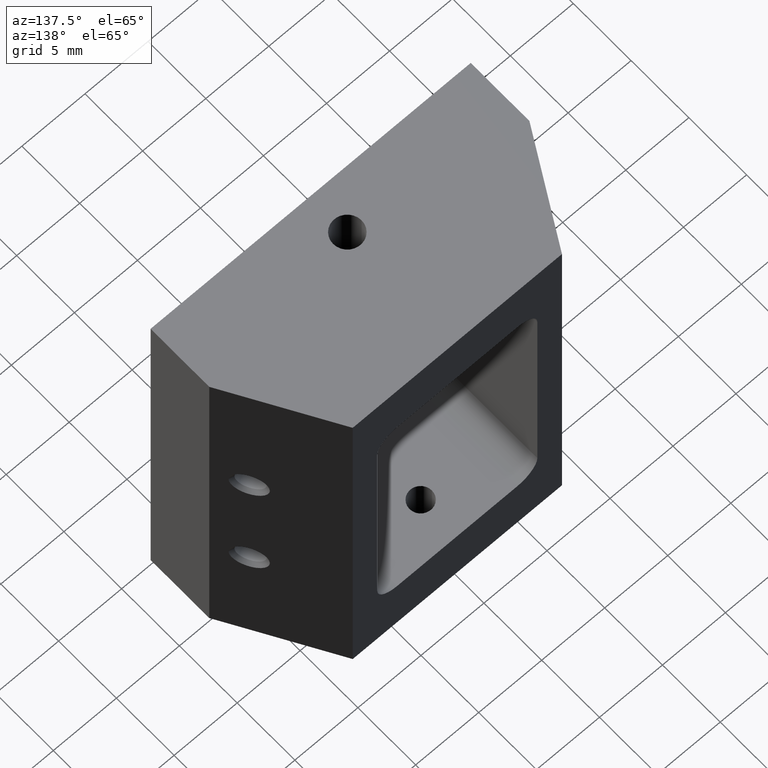
[diagram: clean part render]
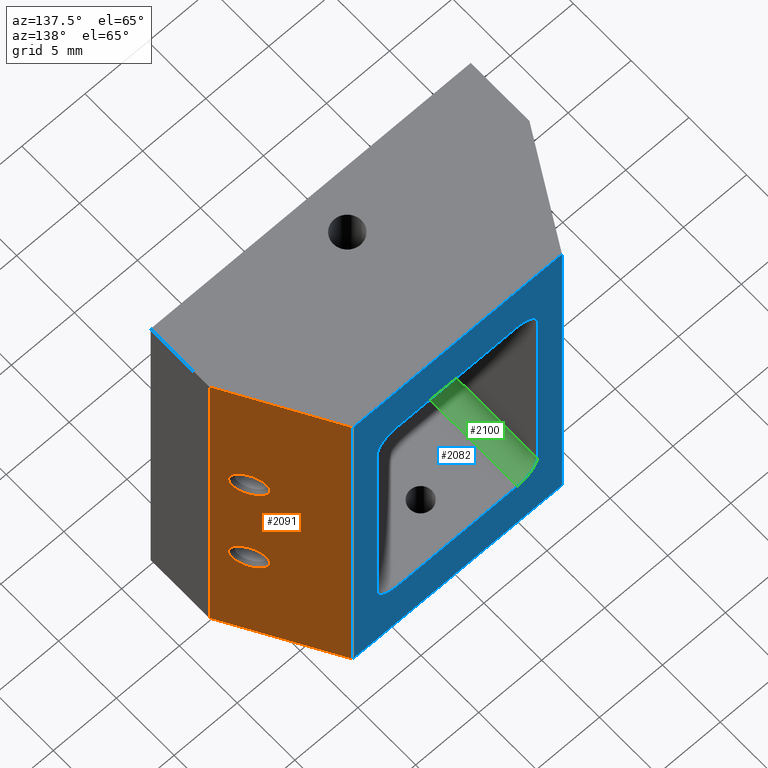
[diagram: same view with three faces highlighted in distinct colors, each labeled with its STEP entity id]
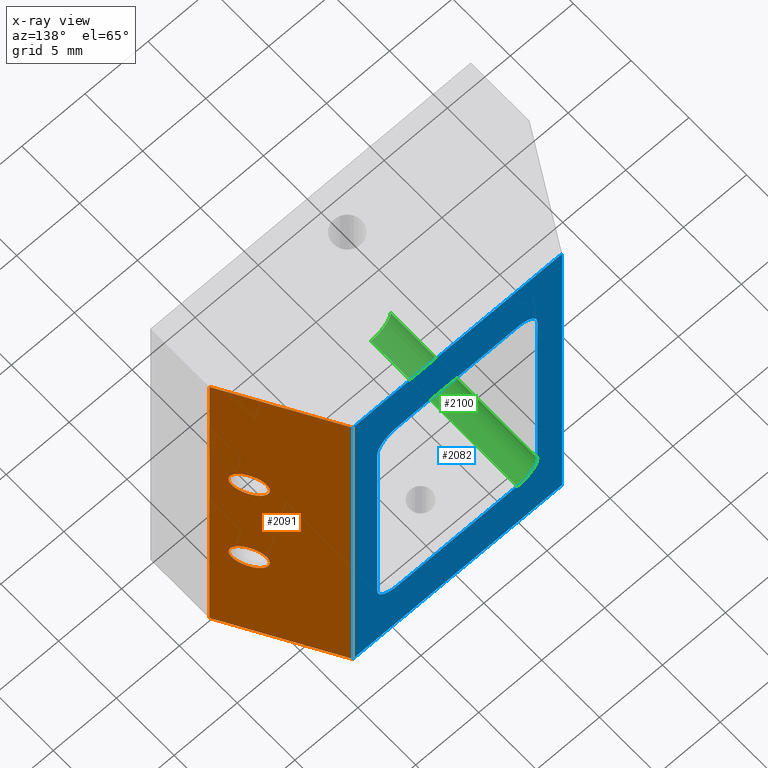
[diagram: x-ray of the same camera — body ghosted, the three highlighted faces saturated]
A machine part, auxiliary view with three faces highlighted in distinct colors.
The next image is the same camera in x-ray (body ghosted, the three faces saturated) — at least one of them is partly hidden behind the body in this view.
Their STEP definitions:

[orange] entity #2091 — the highlighted planar face has unit normal (-0.866, -0.5, 0).
#6 = EDGE_LOOP ( 'NONE', ( #1238, #1302 ) ) ;
#11 = EDGE_LOOP ( 'NONE', ( #1278, #1335 ) ) ;
#18 = EDGE_LOOP ( 'NONE', ( #1263, #1273, #1275, #1293 ) ) ;
#82 = LINE ( 'NONE', #278, #111 ) ;
#86 = LINE ( 'NONE', #280, #95 ) ;
#90 = LINE ( 'NONE', #272, #92 ) ;
#92 = VECTOR ( 'NONE', #261, 39.37007874015748900 ) ;
#95 = VECTOR ( 'NONE', #281, 39.37007874015748100 ) ;
#96 = CIRCLE ( 'NONE', #1210, 0.05000000000000002400 ) ;
#97 = VECTOR ( 'NONE', #277, 39.37007874015748100 ) ;
#104 = CIRCLE ( 'NONE', #1206, 0.05000000000000002400 ) ;
#111 = VECTOR ( 'NONE', #279, 39.37007874015748900 ) ;
#112 = LINE ( 'NONE', #271, #97 ) ;
#261 = DIRECTION ( 'NONE',  ( -0.5000000000000012200, 0.8660254037844379300, -0.0000000000000000000 ) ) ;
#271 = CARTESIAN_POINT ( 'NONE',  ( 0.3267949192431118300, 0.4999999999999998300, 1.259842519685039400 ) ) ;
#272 = CARTESIAN_POINT ( 'NONE',  ( 0.3267949192431118300, 0.4999999999999998300, 0.0000000000000000000 ) ) ;
#277 = DIRECTION ( 'NONE',  ( -0.0000000000000000000, -0.0000000000000000000, -1.000000000000000000 ) ) ;
#278 = CARTESIAN_POINT ( 'NONE',  ( 0.3267949192431118300, 0.4999999999999998300, 1.259842519685039400 ) ) ;
#279 = DIRECTION ( 'NONE',  ( -0.5000000000000012200, 0.8660254037844379300, -0.0000000000000000000 ) ) ;
#280 = CARTESIAN_POINT ( 'NONE',  ( 0.5000000000000001100, 0.1999999999999999800, 1.259842519685039400 ) ) ;
#281 = DIRECTION ( 'NONE',  ( -0.0000000000000000000, -0.0000000000000000000, -1.000000000000000000 ) ) ;
#283 = CARTESIAN_POINT ( 'NONE',  ( 0.4517949192431124900, 0.2834936490538905700, 0.7874015748031495400 ) ) ;
#284 = DIRECTION ( 'NONE',  ( 0.8660254037844388200, 0.4999999999999996700, -0.0000000000000000000 ) ) ;
#285 = DIRECTION ( 'NONE',  ( -0.4999999999999998900, 0.8660254037844388200, 0.0000000000000000000 ) ) ;
#304 = CARTESIAN_POINT ( 'NONE',  ( 0.4517949192431124900, 0.2834936490538905700, 0.3937007874015746600 ) ) ;
#305 = DIRECTION ( 'NONE',  ( 0.8660254037844388200, 0.4999999999999996700, -0.0000000000000000000 ) ) ;
#306 = DIRECTION ( 'NONE',  ( -0.4999999999999998900, 0.8660254037844388200, 0.0000000000000000000 ) ) ;
#478 = CARTESIAN_POINT ( 'NONE',  ( 0.4517949192431124900, 0.2834936490538905700, 0.7874015748031495400 ) ) ;
#479 = DIRECTION ( 'NONE',  ( 0.8660254037844388200, 0.4999999999999996700, -0.0000000000000000000 ) ) ;
#480 = DIRECTION ( 'NONE',  ( -0.4999999999999998900, 0.8660254037844388200, 0.0000000000000000000 ) ) ;
#830 = CARTESIAN_POINT ( 'NONE',  ( 0.4517949192431124900, 0.2834936490538905700, 0.3937007874015746600 ) ) ;
#831 = DIRECTION ( 'NONE',  ( 0.8660254037844388200, 0.4999999999999996700, -0.0000000000000000000 ) ) ;
#832 = DIRECTION ( 'NONE',  ( -0.4999999999999998900, 0.8660254037844388200, 0.0000000000000000000 ) ) ;
#833 = CARTESIAN_POINT ( 'NONE',  ( 0.3267949192431118300, 0.4999999999999998300, 0.0000000000000000000 ) ) ;
#834 = CARTESIAN_POINT ( 'NONE',  ( 0.3267949192431118300, 0.4999999999999998300, 1.259842519685039400 ) ) ;
#877 = CARTESIAN_POINT ( 'NONE',  ( 0.4267949192431125200, 0.3267949192431125500, 0.7874015748031495400 ) ) ;
#881 = CARTESIAN_POINT ( 'NONE',  ( 0.4767949192431125100, 0.2401923788646686300, 0.3937007874015746600 ) ) ;
#891 = CARTESIAN_POINT ( 'NONE',  ( 0.4767949192431125100, 0.2401923788646686300, 0.7874015748031495400 ) ) ;
#906 = CARTESIAN_POINT ( 'NONE',  ( 0.4267949192431125200, 0.3267949192431125500, 0.3937007874015746600 ) ) ;
#916 = CARTESIAN_POINT ( 'NONE',  ( 0.5000000000000001100, 0.1999999999999999800, 1.259842519685039400 ) ) ;
#931 = CARTESIAN_POINT ( 'NONE',  ( 0.5000000000000001100, 0.1999999999999999800, 0.0000000000000000000 ) ) ;
#998 = DIRECTION ( 'NONE',  ( -0.8660254037844379300, -0.5000000000000012200, 0.0000000000000000000 ) ) ;
#1005 = CARTESIAN_POINT ( 'NONE',  ( 0.3267949192431118300, 0.4999999999999998300, 1.259842519685039400 ) ) ;
#1007 = PLANE ( 'NONE',  #1980 ) ;
#1009 = DIRECTION ( 'NONE',  ( 0.5000000000000012200, -0.8660254037844379300, 0.0000000000000000000 ) ) ;
#1038 = EDGE_CURVE ( 'NONE', #1506, #1348, #90, .T. ) ;
#1039 = EDGE_CURVE ( 'NONE', #1346, #1348, #112, .T. ) ;
#1040 = EDGE_CURVE ( 'NONE', #1487, #1346, #82, .T. ) ;
#1041 = EDGE_CURVE ( 'NONE', #1487, #1506, #86, .T. ) ;
#1042 = EDGE_CURVE ( 'NONE', #1447, #1455, #104, .T. ) ;
#1050 = EDGE_CURVE ( 'NONE', #1470, #1444, #96, .T. ) ;
#1099 = EDGE_CURVE ( 'NONE', #1455, #1447, #1674, .T. ) ;
#1196 = EDGE_CURVE ( 'NONE', #1444, #1470, #1768, .T. ) ;
#1206 = AXIS2_PLACEMENT_3D ( 'NONE', #283, #284, #285 ) ;
#1210 = AXIS2_PLACEMENT_3D ( 'NONE', #304, #305, #306 ) ;
#1229 = AXIS2_PLACEMENT_3D ( 'NONE', #478, #479, #480 ) ;
#1238 = ORIENTED_EDGE ( 'NONE', *, *, #1050, .F. ) ;
#1263 = ORIENTED_EDGE ( 'NONE', *, *, #1038, .T. ) ;
#1273 = ORIENTED_EDGE ( 'NONE', *, *, #1039, .F. ) ;
#1275 = ORIENTED_EDGE ( 'NONE', *, *, #1040, .F. ) ;
#1278 = ORIENTED_EDGE ( 'NONE', *, *, #1042, .F. ) ;
#1293 = ORIENTED_EDGE ( 'NONE', *, *, #1041, .T. ) ;
#1302 = ORIENTED_EDGE ( 'NONE', *, *, #1196, .F. ) ;
#1335 = ORIENTED_EDGE ( 'NONE', *, *, #1099, .F. ) ;
#1346 = VERTEX_POINT ( 'NONE', #834 ) ;
#1348 = VERTEX_POINT ( 'NONE', #833 ) ;
#1444 = VERTEX_POINT ( 'NONE', #881 ) ;
#1447 = VERTEX_POINT ( 'NONE', #877 ) ;
#1455 = VERTEX_POINT ( 'NONE', #891 ) ;
#1470 = VERTEX_POINT ( 'NONE', #906 ) ;
#1487 = VERTEX_POINT ( 'NONE', #916 ) ;
#1506 = VERTEX_POINT ( 'NONE', #931 ) ;
#1674 = CIRCLE ( 'NONE', #1229, 0.05000000000000002400 ) ;
#1768 = CIRCLE ( 'NONE', #1959, 0.05000000000000002400 ) ;
#1832 = FACE_OUTER_BOUND ( 'NONE', #18, .T. ) ;
#1833 = FACE_BOUND ( 'NONE', #6, .T. ) ;
#1836 = FACE_BOUND ( 'NONE', #11, .T. ) ;
#1959 = AXIS2_PLACEMENT_3D ( 'NONE', #830, #831, #832 ) ;
#1980 = AXIS2_PLACEMENT_3D ( 'NONE', #1005, #998, #1009 ) ;
#2091 = ADVANCED_FACE ( 'NONE', ( #1832, #1836, #1833 ), #1007, .F. ) ;

[blue] entity #2082 — the highlighted planar face has unit normal (0, -1, 0).
#7 = EDGE_LOOP ( 'NONE', ( #1319, #1332, #1334, #1333, #1320, #1321, #1330, #1328 ) ) ;
#19 = EDGE_LOOP ( 'NONE', ( #1327, #1326, #1325, #1324 ) ) ;
#94 = VECTOR ( 'NONE', #276, 39.37007874015748100 ) ;
#97 = VECTOR ( 'NONE', #277, 39.37007874015748100 ) ;
#99 = LINE ( 'NONE', #303, #101 ) ;
#100 = LINE ( 'NONE', #290, #94 ) ;
#101 = VECTOR ( 'NONE', #299, 39.37007874015748100 ) ;
#102 = CIRCLE ( 'NONE', #1211, 0.06249999999999995100 ) ;
#109 = LINE ( 'NONE', #313, #110 ) ;
#110 = VECTOR ( 'NONE', #315, 39.37007874015748100 ) ;
#112 = LINE ( 'NONE', #271, #97 ) ;
#116 = CIRCLE ( 'NONE', #1213, 0.06250000000000001400 ) ;
#118 = VECTOR ( 'NONE', #308, 39.37007874015748100 ) ;
#120 = VECTOR ( 'NONE', #319, 39.37007874015748100 ) ;
#126 = LINE ( 'NONE', #314, #118 ) ;
#130 = LINE ( 'NONE', #323, #120 ) ;
#132 = CIRCLE ( 'NONE', #1212, 0.06249999999999995100 ) ;
#254 = CARTESIAN_POINT ( 'NONE',  ( -0.3267949192431118300, 0.4999999999999998300, 0.0000000000000000000 ) ) ;
#257 = DIRECTION ( 'NONE',  ( -1.000000000000000000, -0.0000000000000000000, -0.0000000000000000000 ) ) ;
#258 = CARTESIAN_POINT ( 'NONE',  ( -0.3267949192431118300, 0.4999999999999998300, 1.259842519685039400 ) ) ;
#260 = DIRECTION ( 'NONE',  ( -1.000000000000000000, -0.0000000000000000000, -0.0000000000000000000 ) ) ;
#262 = CARTESIAN_POINT ( 'NONE',  ( 0.1874999999999999700, 0.4999999999999998300, 0.2593503937007873800 ) ) ;
#263 = DIRECTION ( 'NONE',  ( 0.0000000000000000000, -1.000000000000000000, 0.0000000000000000000 ) ) ;
#264 = DIRECTION ( 'NONE',  ( 0.0000000000000000000, 0.0000000000000000000, -1.000000000000000000 ) ) ;
#271 = CARTESIAN_POINT ( 'NONE',  ( 0.3267949192431118300, 0.4999999999999998300, 1.259842519685039400 ) ) ;
#276 = DIRECTION ( 'NONE',  ( -0.0000000000000000000, -0.0000000000000000000, -1.000000000000000000 ) ) ;
#277 = DIRECTION ( 'NONE',  ( -0.0000000000000000000, -0.0000000000000000000, -1.000000000000000000 ) ) ;
#290 = CARTESIAN_POINT ( 'NONE',  ( -0.3267949192431118300, 0.4999999999999998300, 1.259842519685039400 ) ) ;
#299 = DIRECTION ( 'NONE',  ( -2.365532012695646200E-016, -0.0000000000000000000, -1.000000000000000000 ) ) ;
#303 = CARTESIAN_POINT ( 'NONE',  ( 0.2500000000000000000, 0.4999999999999998300, 0.1968503937007874100 ) ) ;
#308 = DIRECTION ( 'NONE',  ( -0.0000000000000000000, -0.0000000000000000000, 1.000000000000000000 ) ) ;
#310 = CARTESIAN_POINT ( 'NONE',  ( 0.1875000000000001900, 0.4999999999999998300, 1.000492125984252100 ) ) ;
#311 = DIRECTION ( 'NONE',  ( 0.0000000000000000000, -1.000000000000000000, 0.0000000000000000000 ) ) ;
#312 = DIRECTION ( 'NONE',  ( 0.0000000000000000000, 0.0000000000000000000, -1.000000000000000000 ) ) ;
#313 = CARTESIAN_POINT ( 'NONE',  ( 0.2500000000000002200, 0.4999999999999998300, 1.062992125984252100 ) ) ;
#314 = CARTESIAN_POINT ( 'NONE',  ( -0.2500000000000000000, 0.4999999999999998300, 1.062992125984252100 ) ) ;
#315 = DIRECTION ( 'NONE',  ( 1.000000000000000000, -0.0000000000000000000, -0.0000000000000000000 ) ) ;
#319 = DIRECTION ( 'NONE',  ( -1.000000000000000000, -0.0000000000000000000, -0.0000000000000000000 ) ) ;
#320 = CARTESIAN_POINT ( 'NONE',  ( -0.1874999999999999700, 0.4999999999999998300, 1.000492125984252100 ) ) ;
#321 = DIRECTION ( 'NONE',  ( 0.0000000000000000000, -1.000000000000000000, 0.0000000000000000000 ) ) ;
#322 = DIRECTION ( 'NONE',  ( 0.0000000000000000000, 0.0000000000000000000, -1.000000000000000000 ) ) ;
#323 = CARTESIAN_POINT ( 'NONE',  ( -0.2500000000000000000, 0.4999999999999998300, 0.1968503937007874100 ) ) ;
#326 = CARTESIAN_POINT ( 'NONE',  ( -0.1874999999999999700, 0.4999999999999998300, 0.2593503937007873800 ) ) ;
#327 = DIRECTION ( 'NONE',  ( 0.0000000000000000000, -1.000000000000000000, 0.0000000000000000000 ) ) ;
#328 = DIRECTION ( 'NONE',  ( 0.0000000000000000000, 0.0000000000000000000, -1.000000000000000000 ) ) ;
#833 = CARTESIAN_POINT ( 'NONE',  ( 0.3267949192431118300, 0.4999999999999998300, 0.0000000000000000000 ) ) ;
#834 = CARTESIAN_POINT ( 'NONE',  ( 0.3267949192431118300, 0.4999999999999998300, 1.259842519685039400 ) ) ;
#847 = CARTESIAN_POINT ( 'NONE',  ( 0.2500000000000002200, 0.4999999999999998300, 1.000492125984252100 ) ) ;
#912 = CARTESIAN_POINT ( 'NONE',  ( -0.3267949192431118300, 0.4999999999999998300, 1.259842519685039400 ) ) ;
#913 = CARTESIAN_POINT ( 'NONE',  ( -0.1874999999999999700, 0.4999999999999998300, 1.062992125984252100 ) ) ;
#917 = CARTESIAN_POINT ( 'NONE',  ( -0.1874999999999999700, 0.4999999999999998300, 0.1968503937007874100 ) ) ;
#927 = CARTESIAN_POINT ( 'NONE',  ( -0.2500000000000000000, 0.4999999999999998300, 0.2593503937007873800 ) ) ;
#932 = CARTESIAN_POINT ( 'NONE',  ( 0.1874999999999999700, 0.4999999999999998300, 0.1968503937007874100 ) ) ;
#933 = CARTESIAN_POINT ( 'NONE',  ( 0.1875000000000001900, 0.4999999999999998300, 1.062992125984252100 ) ) ;
#934 = CARTESIAN_POINT ( 'NONE',  ( -0.2500000000000000000, 0.4999999999999998300, 1.000492125984252100 ) ) ;
#937 = CARTESIAN_POINT ( 'NONE',  ( 0.2500000000000000000, 0.4999999999999998300, 0.2593503937007873800 ) ) ;
#940 = CARTESIAN_POINT ( 'NONE',  ( -0.3267949192431118300, 0.4999999999999998300, 0.0000000000000000000 ) ) ;
#973 = CARTESIAN_POINT ( 'NONE',  ( -0.3267949192431118300, 0.4999999999999998300, 1.259842519685039400 ) ) ;
#976 = PLANE ( 'NONE',  #1972 ) ;
#978 = DIRECTION ( 'NONE',  ( 0.0000000000000000000, -1.000000000000000000, 0.0000000000000000000 ) ) ;
#979 = DIRECTION ( 'NONE',  ( 0.0000000000000000000, -0.0000000000000000000, -1.000000000000000000 ) ) ;
#1032 = EDGE_CURVE ( 'NONE', #1348, #1515, #1662, .T. ) ;
#1033 = EDGE_CURVE ( 'NONE', #1346, #1494, #1659, .T. ) ;
#1034 = EDGE_CURVE ( 'NONE', #1507, #1512, #1661, .T. ) ;
#1039 = EDGE_CURVE ( 'NONE', #1346, #1348, #112, .T. ) ;
#1045 = EDGE_CURVE ( 'NONE', #1494, #1515, #100, .T. ) ;
#1051 = EDGE_CURVE ( 'NONE', #1347, #1512, #99, .T. ) ;
#1052 = EDGE_CURVE ( 'NONE', #1347, #1508, #102, .T. ) ;
#1054 = EDGE_CURVE ( 'NONE', #1483, #1508, #109, .T. ) ;
#1057 = EDGE_CURVE ( 'NONE', #1483, #1509, #132, .T. ) ;
#1058 = EDGE_CURVE ( 'NONE', #1501, #1509, #126, .T. ) ;
#1059 = EDGE_CURVE ( 'NONE', #1501, #1485, #116, .T. ) ;
#1060 = EDGE_CURVE ( 'NONE', #1507, #1485, #130, .T. ) ;
#1202 = AXIS2_PLACEMENT_3D ( 'NONE', #262, #263, #264 ) ;
#1211 = AXIS2_PLACEMENT_3D ( 'NONE', #310, #311, #312 ) ;
#1212 = AXIS2_PLACEMENT_3D ( 'NONE', #320, #321, #322 ) ;
#1213 = AXIS2_PLACEMENT_3D ( 'NONE', #326, #327, #328 ) ;
#1319 = ORIENTED_EDGE ( 'NONE', *, *, #1051, .F. ) ;
#1320 = ORIENTED_EDGE ( 'NONE', *, *, #1058, .F. ) ;
#1321 = ORIENTED_EDGE ( 'NONE', *, *, #1059, .T. ) ;
#1324 = ORIENTED_EDGE ( 'NONE', *, *, #1039, .T. ) ;
#1325 = ORIENTED_EDGE ( 'NONE', *, *, #1033, .F. ) ;
#1326 = ORIENTED_EDGE ( 'NONE', *, *, #1045, .F. ) ;
#1327 = ORIENTED_EDGE ( 'NONE', *, *, #1032, .T. ) ;
#1328 = ORIENTED_EDGE ( 'NONE', *, *, #1034, .T. ) ;
#1330 = ORIENTED_EDGE ( 'NONE', *, *, #1060, .F. ) ;
#1332 = ORIENTED_EDGE ( 'NONE', *, *, #1052, .T. ) ;
#1333 = ORIENTED_EDGE ( 'NONE', *, *, #1057, .T. ) ;
#1334 = ORIENTED_EDGE ( 'NONE', *, *, #1054, .F. ) ;
#1346 = VERTEX_POINT ( 'NONE', #834 ) ;
#1347 = VERTEX_POINT ( 'NONE', #847 ) ;
#1348 = VERTEX_POINT ( 'NONE', #833 ) ;
#1483 = VERTEX_POINT ( 'NONE', #913 ) ;
#1485 = VERTEX_POINT ( 'NONE', #917 ) ;
#1494 = VERTEX_POINT ( 'NONE', #912 ) ;
#1501 = VERTEX_POINT ( 'NONE', #927 ) ;
#1507 = VERTEX_POINT ( 'NONE', #932 ) ;
#1508 = VERTEX_POINT ( 'NONE', #933 ) ;
#1509 = VERTEX_POINT ( 'NONE', #934 ) ;
#1512 = VERTEX_POINT ( 'NONE', #937 ) ;
#1515 = VERTEX_POINT ( 'NONE', #940 ) ;
#1659 = LINE ( 'NONE', #258, #1665 ) ;
#1661 = CIRCLE ( 'NONE', #1202, 0.06250000000000001400 ) ;
#1662 = LINE ( 'NONE', #254, #1663 ) ;
#1663 = VECTOR ( 'NONE', #257, 39.37007874015748100 ) ;
#1665 = VECTOR ( 'NONE', #260, 39.37007874015748100 ) ;
#1805 = FACE_BOUND ( 'NONE', #7, .T. ) ;
#1813 = FACE_OUTER_BOUND ( 'NONE', #19, .T. ) ;
#1972 = AXIS2_PLACEMENT_3D ( 'NONE', #973, #978, #979 ) ;
#2082 = ADVANCED_FACE ( 'NONE', ( #1805, #1813 ), #976, .F. ) ;

[green] entity #2100 — the highlighted cylindrical surface (edge-blend (fillet) strip) has radius 1.5875 mm, axis along (0, -1, 0).
#36 = EDGE_LOOP ( 'NONE', ( #1526, #1533, #1519, #1525 ) ) ;
#116 = CIRCLE ( 'NONE', #1213, 0.06250000000000001400 ) ;
#124 = LINE ( 'NONE', #336, #125 ) ;
#125 = VECTOR ( 'NONE', #340, 39.37007874015748100 ) ;
#183 = CARTESIAN_POINT ( 'NONE',  ( -0.1874999999999999700, -1.365923996832131600E-016, 0.2593503937007873800 ) ) ;
#184 = DIRECTION ( 'NONE',  ( 0.0000000000000000000, -1.000000000000000000, 0.0000000000000000000 ) ) ;
#186 = DIRECTION ( 'NONE',  ( 0.0000000000000000000, 0.0000000000000000000, -1.000000000000000000 ) ) ;
#326 = CARTESIAN_POINT ( 'NONE',  ( -0.1874999999999999700, 0.4999999999999998300, 0.2593503937007873800 ) ) ;
#327 = DIRECTION ( 'NONE',  ( 0.0000000000000000000, -1.000000000000000000, 0.0000000000000000000 ) ) ;
#328 = DIRECTION ( 'NONE',  ( 0.0000000000000000000, 0.0000000000000000000, -1.000000000000000000 ) ) ;
#336 = CARTESIAN_POINT ( 'NONE',  ( -0.2500000000000000000, 0.4999999999999998300, 0.2593503937007873800 ) ) ;
#340 = DIRECTION ( 'NONE',  ( 0.0000000000000000000, 1.000000000000000000, 0.0000000000000000000 ) ) ;
#344 = DIRECTION ( 'NONE',  ( -0.0000000000000000000, -1.000000000000000000, -0.0000000000000000000 ) ) ;
#349 = CARTESIAN_POINT ( 'NONE',  ( -0.1874999999999999700, -1.365923996832131600E-016, 0.1968503937007874100 ) ) ;
#595 = CARTESIAN_POINT ( 'NONE',  ( -0.1874999999999999700, -1.530808498934191600E-016, 0.2593503937007873800 ) ) ;
#596 = DIRECTION ( 'NONE',  ( 0.0000000000000000000, 1.000000000000000000, -0.0000000000000000000 ) ) ;
#597 = DIRECTION ( 'NONE',  ( 0.0000000000000000000, 0.0000000000000000000, 1.000000000000000000 ) ) ;
#917 = CARTESIAN_POINT ( 'NONE',  ( -0.1874999999999999700, 0.4999999999999998300, 0.1968503937007874100 ) ) ;
#927 = CARTESIAN_POINT ( 'NONE',  ( -0.2500000000000000000, 0.4999999999999998300, 0.2593503937007873800 ) ) ;
#938 = CARTESIAN_POINT ( 'NONE',  ( -0.1874999999999999700, -1.365923996832131600E-016, 0.1968503937007874100 ) ) ;
#941 = CARTESIAN_POINT ( 'NONE',  ( -0.2500000000000000000, -1.365923996832131600E-016, 0.2593503937007873800 ) ) ;
#1059 = EDGE_CURVE ( 'NONE', #1501, #1485, #116, .T. ) ;
#1065 = EDGE_CURVE ( 'NONE', #1516, #1501, #124, .T. ) ;
#1069 = EDGE_CURVE ( 'NONE', #1485, #1513, #1133, .T. ) ;
#1132 = VECTOR ( 'NONE', #344, 39.37007874015748100 ) ;
#1133 = LINE ( 'NONE', #349, #1132 ) ;
#1140 = EDGE_CURVE ( 'NONE', #1513, #1516, #1713, .T. ) ;
#1213 = AXIS2_PLACEMENT_3D ( 'NONE', #326, #327, #328 ) ;
#1485 = VERTEX_POINT ( 'NONE', #917 ) ;
#1501 = VERTEX_POINT ( 'NONE', #927 ) ;
#1513 = VERTEX_POINT ( 'NONE', #938 ) ;
#1516 = VERTEX_POINT ( 'NONE', #941 ) ;
#1519 = ORIENTED_EDGE ( 'NONE', *, *, #1059, .F. ) ;
#1525 = ORIENTED_EDGE ( 'NONE', *, *, #1065, .F. ) ;
#1526 = ORIENTED_EDGE ( 'NONE', *, *, #1140, .F. ) ;
#1533 = ORIENTED_EDGE ( 'NONE', *, *, #1069, .F. ) ;
#1713 = CIRCLE ( 'NONE', #1936, 0.06250000000000001400 ) ;
#1853 = FACE_OUTER_BOUND ( 'NONE', #36, .T. ) ;
#1858 = CYLINDRICAL_SURFACE ( 'NONE', #1991, 0.06250000000000001400 ) ;
#1936 = AXIS2_PLACEMENT_3D ( 'NONE', #595, #596, #597 ) ;
#1991 = AXIS2_PLACEMENT_3D ( 'NONE', #183, #184, #186 ) ;
#2100 = ADVANCED_FACE ( 'NONE', ( #1853 ), #1858, .F. ) ;